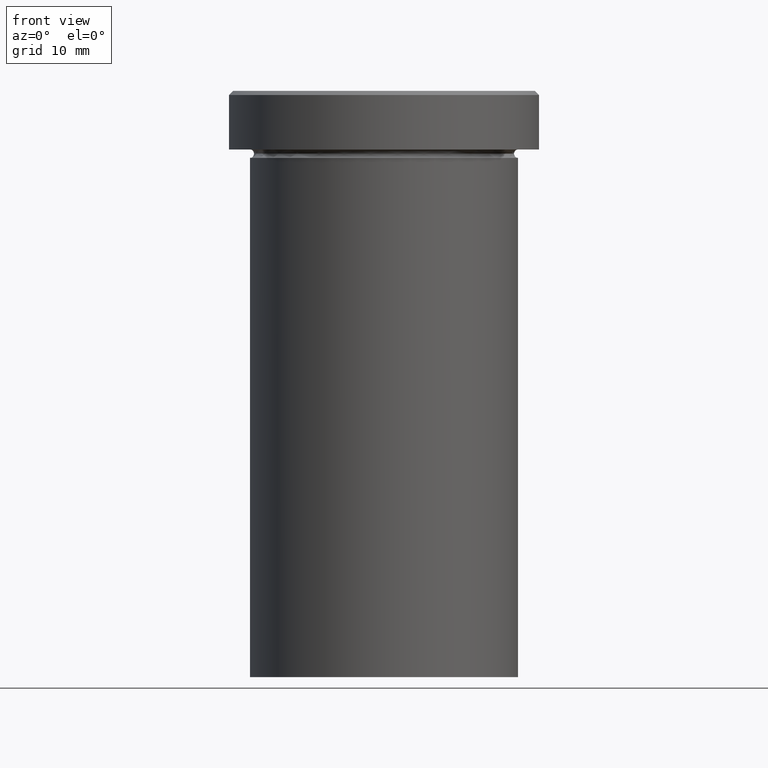
[diagram: clean part render]
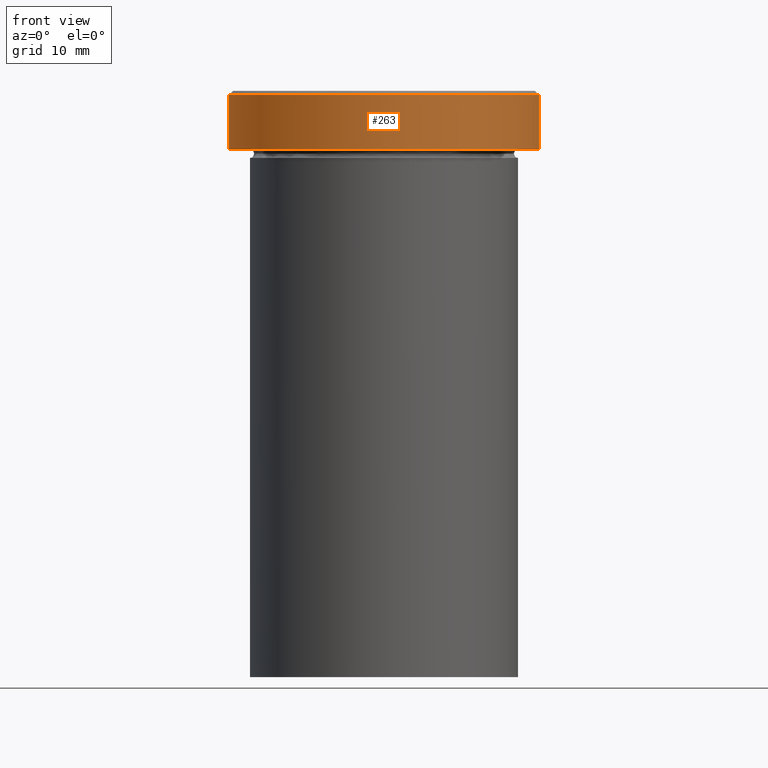
[diagram: same view with one face highlighted and labeled with its STEP entity id]
A machine part, front view. The second image highlights one B-rep face of the part: STEP entity #263.
In plain terms, the highlighted cylindrical surface (partial cylindrical patch) has radius 18.5 mm, axis along (-0, -0, 1).
Its self-contained STEP definition (entity closure, byte-faithful):
#45 = DIRECTION ( 'NONE',  ( 1.000000000000000000, 0.000000000000000000, 0.000000000000000000 ) ) ;
#46 = EDGE_CURVE ( 'NONE', #216, #121, #319, .T. ) ;
#49 = FACE_OUTER_BOUND ( 'NONE', #212, .T. ) ;
#69 = AXIS2_PLACEMENT_3D ( 'NONE', #302, #208, #45 ) ;
#83 = VECTOR ( 'NONE', #404, 1000.000000000000000 ) ;
#102 = VERTEX_POINT ( 'NONE', #358 ) ;
#121 = VERTEX_POINT ( 'NONE', #390 ) ;
#132 = ORIENTED_EDGE ( 'NONE', *, *, #248, .F. ) ;
#135 = AXIS2_PLACEMENT_3D ( 'NONE', #178, #239, #172 ) ;
#150 = DIRECTION ( 'NONE',  ( 0.000000000000000000, 0.000000000000000000, -1.000000000000000000 ) ) ;
#165 = CIRCLE ( 'NONE', #320, 18.50000000000000000 ) ;
#170 = CARTESIAN_POINT ( 'NONE',  ( 18.50000000000000000, 0.000000000000000000, -6.999999999999999112 ) ) ;
#172 = DIRECTION ( 'NONE',  ( 1.000000000000000000, 0.000000000000000000, 0.000000000000000000 ) ) ;
#178 = CARTESIAN_POINT ( 'NONE',  ( 0.000000000000000000, 0.000000000000000000, 0.000000000000000000 ) ) ;
#186 = CARTESIAN_POINT ( 'NONE',  ( 18.50000000000000000, 0.000000000000000000, 0.000000000000000000 ) ) ;
#206 = CIRCLE ( 'NONE', #69, 18.50000000000000000 ) ;
#208 = DIRECTION ( 'NONE',  ( -0.000000000000000000, -0.000000000000000000, 1.000000000000000000 ) ) ;
#211 = EDGE_CURVE ( 'NONE', #121, #348, #165, .T. ) ;
#212 = EDGE_LOOP ( 'NONE', ( #132, #310, #312, #377 ) ) ;
#216 = VERTEX_POINT ( 'NONE', #170 ) ;
#235 = VECTOR ( 'NONE', #361, 1000.000000000000000 ) ;
#238 = EDGE_CURVE ( 'NONE', #102, #216, #206, .T. ) ;
#239 = DIRECTION ( 'NONE',  ( -0.000000000000000000, -0.000000000000000000, 1.000000000000000000 ) ) ;
#241 = CARTESIAN_POINT ( 'NONE',  ( -18.50000000000000000, 2.265596578422603396E-15, 0.000000000000000000 ) ) ;
#248 = EDGE_CURVE ( 'NONE', #102, #348, #277, .T. ) ;
#263 = ADVANCED_FACE ( 'NONE', ( #49 ), #340, .T. ) ;
#277 = LINE ( 'NONE', #241, #83 ) ;
#302 = CARTESIAN_POINT ( 'NONE',  ( 0.000000000000000000, 0.000000000000000000, -6.999999999999999112 ) ) ;
#307 = CARTESIAN_POINT ( 'NONE',  ( 0.000000000000000000, 0.000000000000000000, -0.5000000000000073275 ) ) ;
#310 = ORIENTED_EDGE ( 'NONE', *, *, #238, .T. ) ;
#312 = ORIENTED_EDGE ( 'NONE', *, *, #46, .T. ) ;
#318 = CARTESIAN_POINT ( 'NONE',  ( -18.50000000000000000, 2.265596578422603396E-15, -0.5000000000000073275 ) ) ;
#319 = LINE ( 'NONE', #186, #235 ) ;
#320 = AXIS2_PLACEMENT_3D ( 'NONE', #307, #150, #373 ) ;
#340 = CYLINDRICAL_SURFACE ( 'NONE', #135, 18.50000000000000000 ) ;
#348 = VERTEX_POINT ( 'NONE', #318 ) ;
#358 = CARTESIAN_POINT ( 'NONE',  ( -18.50000000000000000, 2.265596578422603396E-15, -6.999999999999999112 ) ) ;
#361 = DIRECTION ( 'NONE',  ( -0.000000000000000000, -0.000000000000000000, 1.000000000000000000 ) ) ;
#373 = DIRECTION ( 'NONE',  ( 1.000000000000000000, 0.000000000000000000, 0.000000000000000000 ) ) ;
#377 = ORIENTED_EDGE ( 'NONE', *, *, #211, .T. ) ;
#390 = CARTESIAN_POINT ( 'NONE',  ( 18.50000000000000000, 0.000000000000000000, -0.5000000000000073275 ) ) ;
#404 = DIRECTION ( 'NONE',  ( -0.000000000000000000, -0.000000000000000000, 1.000000000000000000 ) ) ;